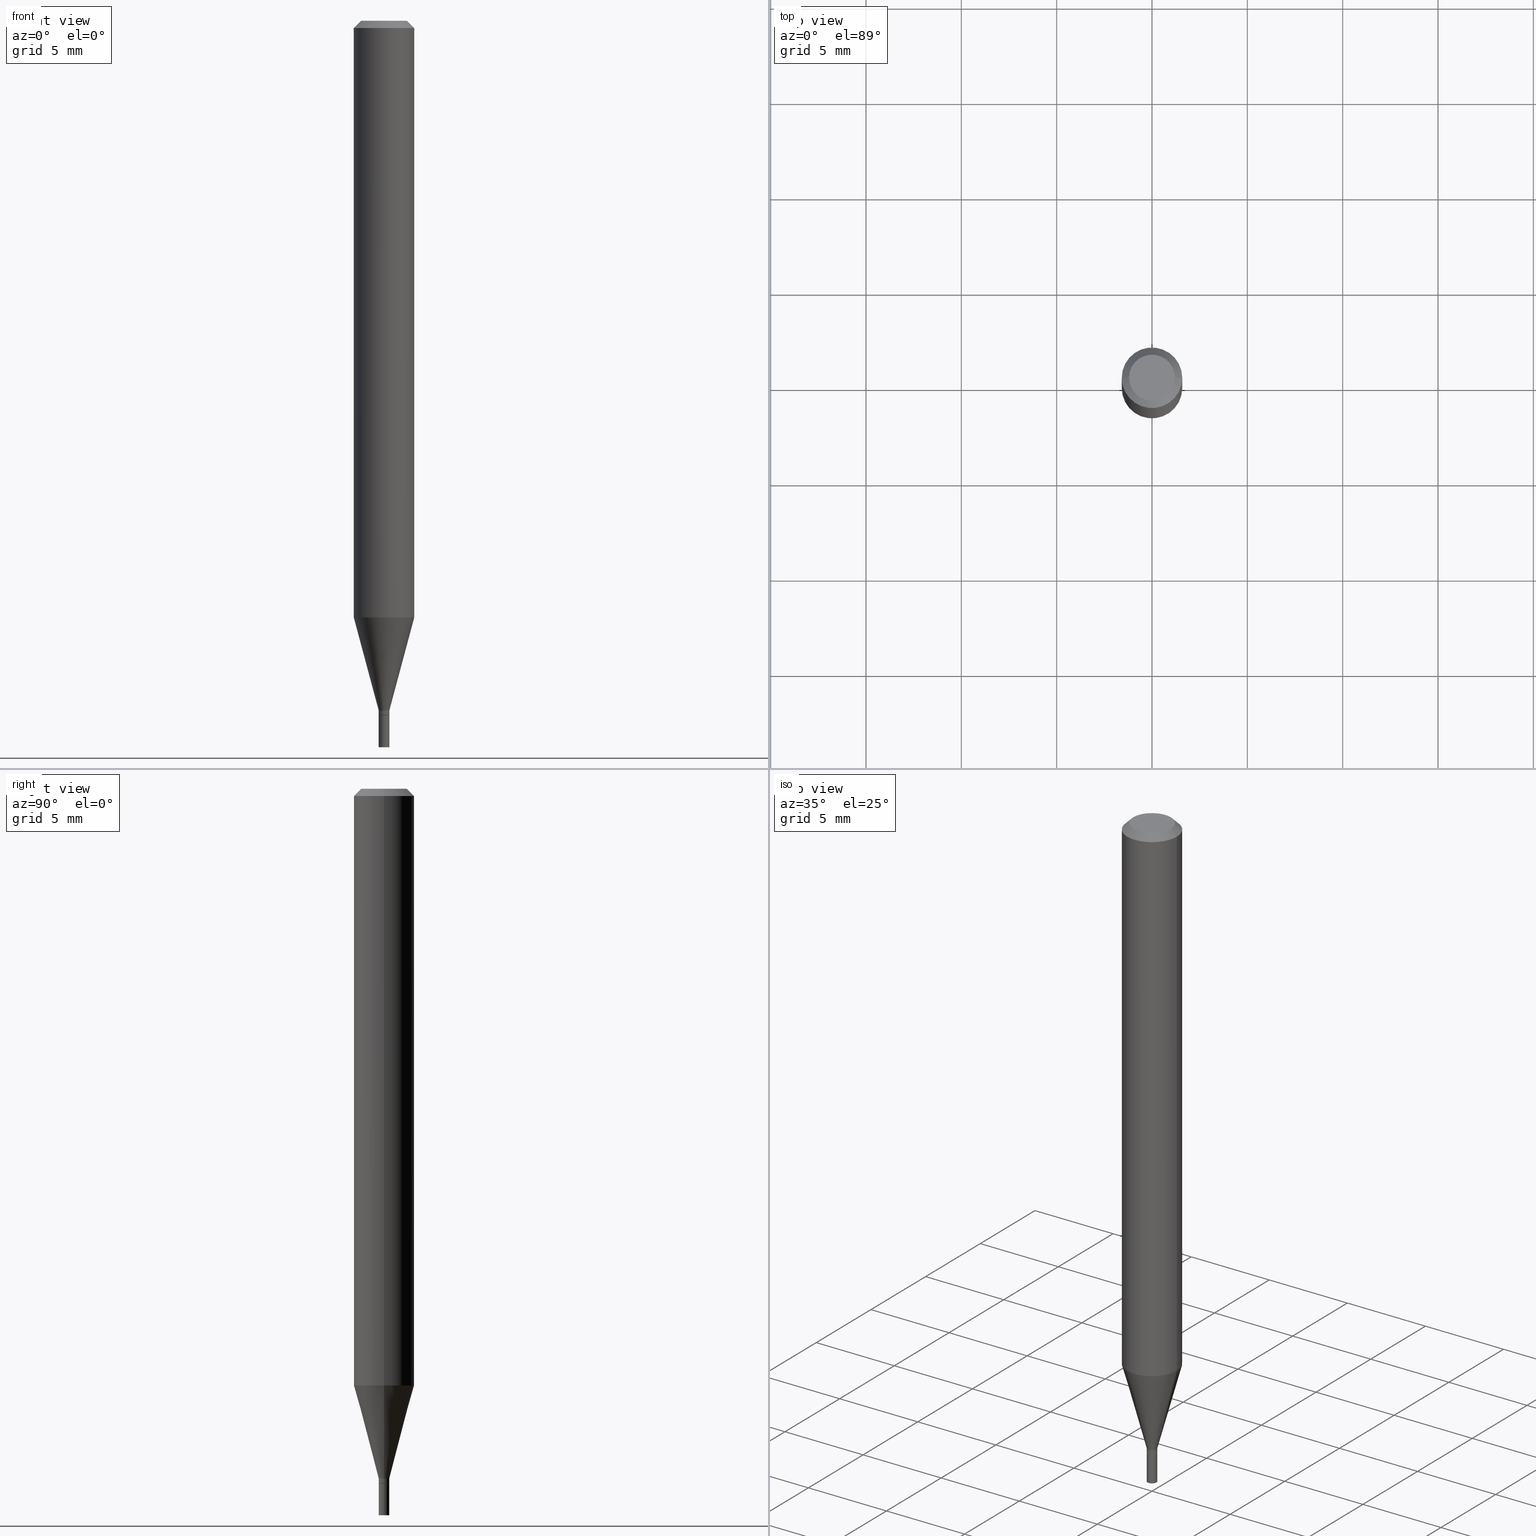
[diagram: canonical four-view strip — front | top / right | iso, engineering-drawing reading convention]
A machine part, canonical four-view strip (front | top / right | iso — engineering-drawing reading convention). The complete STEP part file that produces these views, byte-faithful:
ISO-10303-21;
HEADER;
FILE_DESCRIPTION (( 'STEP AP203' ),
    '1' );
FILE_NAME ('00828.STEP',
    '2024-03-19T22:34:40',
    ( '' ),
    ( '' ),
    'SwSTEP 2.0',
    'SolidWorks 2023',
    '' );
FILE_SCHEMA (( 'CONFIG_CONTROL_DESIGN' ));
ENDSEC;

DATA;
#1 = ORIENTED_EDGE ( 'NONE', *, *, #448, .T. ) ;
#2 = CARTESIAN_POINT ( 'NONE',  ( -0.06250000000000000000, -1.732499180378870171E-15, -0.01499999999999999944 ) ) ;
#3 = FACE_OUTER_BOUND ( 'NONE', #423, .T. ) ;
#4 = CIRCLE ( 'NONE', #22, 0.04749999999999999362 ) ;
#5 = APPLICATION_PROTOCOL_DEFINITION ( 'international standard', 'config_control_design', 1994, #232 ) ;
#6 = FACE_OUTER_BOUND ( 'NONE', #27, .T. ) ;
#7 = CARTESIAN_POINT ( 'NONE',  ( 0.06250000000000000000, -4.811533449433679005E-16, -0.01499999999999999944 ) ) ;
#8 = ORIENTED_EDGE ( 'NONE', *, *, #93, .T. ) ;
#9 = CARTESIAN_POINT ( 'NONE',  ( -0.06250000000000000000, 4.440892098500626162E-16, -3.074334431409316114E-30 ) ) ;
#10 = PERSON_AND_ORGANIZATION_ROLE ( 'creator' ) ;
#11 = VERTEX_POINT ( 'NONE', #172 ) ;
#12 = CIRCLE ( 'NONE', #297, 0.01099999999999999936 ) ;
#13 = SECURITY_CLASSIFICATION ( '', '', #70 ) ;
#14 = EDGE_CURVE ( 'NONE', #372, #64, #58, .T. ) ;
#15 = ORIENTED_EDGE ( 'NONE', *, *, #160, .F. ) ;
#16 = MANIFOLD_SOLID_BREP ( 'Body-Move/Copy2[1]', #316 ) ;
#17 = LINE ( 'NONE', #444, #20 ) ;
#18 = ORIENTED_EDGE ( 'NONE', *, *, #345, .T. ) ;
#19 = ADVANCED_FACE ( 'NONE', ( #115 ), #329, .T. ) ;
#20 = VECTOR ( 'NONE', #238, 39.37007874015748143 ) ;
#21 = DIRECTION ( 'NONE',  ( 1.000000000000000000, -6.982962677686266711E-15, 4.876176775795935793E-29 ) ) ;
#22 = AXIS2_PLACEMENT_3D ( 'NONE', #258, #271, #51 ) ;
#23 = DIRECTION ( 'NONE',  ( 1.000000000000000000, -6.982962677686265922E-15, 4.876176775795935793E-29 ) ) ;
#24 = FACE_OUTER_BOUND ( 'NONE', #171, .T. ) ;
#25 = EDGE_LOOP ( 'NONE', ( #149, #447, #15, #166 ) ) ;
#26 = LINE ( 'NONE', #451, #380 ) ;
#27 = EDGE_LOOP ( 'NONE', ( #142, #86 ) ) ;
#28 = COORDINATED_UNIVERSAL_TIME_OFFSET ( 5, 0, .BEHIND. ) ;
#29 = PLANE ( 'NONE',  #279 ) ;
#30 = CARTESIAN_POINT ( 'NONE',  ( -0.01099999999999999936, 7.815970093361101591E-17, -5.410828599280396199E-31 ) ) ;
#31 = DIRECTION ( 'NONE',  ( 1.000000000000000000, -6.982962677686295898E-15, 0.000000000000000000 ) ) ;
#32 = CONICAL_SURFACE ( 'NONE', #134, 0.01099999999999991956, 0.2617993877991502960 ) ;
#33 = AXIS2_PLACEMENT_3D ( 'NONE', #127, #262, #414 ) ;
#34 = EDGE_CURVE ( 'NONE', #11, #212, #402, .T. ) ;
#35 = CARTESIAN_POINT ( 'NONE',  ( 3.482347580007634944E-29, -4.971869426512640168E-15, -1.424000000000000155 ) ) ;
#36 = CARTESIAN_POINT ( 'NONE',  ( 3.482347580007634944E-29, -4.971869426512640168E-15, -1.424000000000000155 ) ) ;
#37 = DIRECTION ( 'NONE',  ( 0.000000000000000000, 0.000000000000000000, 1.000000000000000000 ) ) ;
#38 = CARTESIAN_POINT ( 'NONE',  ( 0.000000000000000000, 0.000000000000000000, 0.000000000000000000 ) ) ;
#39 = EDGE_CURVE ( 'NONE', #64, #314, #368, .T. ) ;
#40 = VECTOR ( 'NONE', #189, 39.37007874015748143 ) ;
#41 = APPROVAL_PERSON_ORGANIZATION ( #176, #56, #446 ) ;
#42 = CARTESIAN_POINT ( 'NONE',  ( 3.506802268069485929E-29, -5.006784239901070239E-15, -1.434000000000000163 ) ) ;
#43 = EDGE_CURVE ( 'NONE', #11, #314, #254, .T. ) ;
#44 = VERTEX_POINT ( 'NONE', #287 ) ;
#45 = CYLINDRICAL_SURFACE ( 'NONE', #81, 0.01099999999999999936 ) ;
#46 = CIRCLE ( 'NONE', #178, 0.01049999999999999892 ) ;
#47 = LINE ( 'NONE', #197, #340 ) ;
#48 = AXIS2_PLACEMENT_3D ( 'NONE', #227, #181, #346 ) ;
#49 = ORIENTED_EDGE ( 'NONE', *, *, #424, .F. ) ;
#50 = DIRECTION ( 'NONE',  ( 1.000000000000000000, -6.982962677686287221E-15, 0.000000000000000000 ) ) ;
#51 = DIRECTION ( 'NONE',  ( 1.000000000000000000, -6.982962677686267499E-15, 4.852736867747366768E-29 ) ) ;
#52 = PERSON_AND_ORGANIZATION ( #223, #298 ) ;
#53 = VERTEX_POINT ( 'NONE', #432 ) ;
#54 = CARTESIAN_POINT ( 'NONE',  ( 3.506802268069485929E-29, -5.006784239901070239E-15, -1.434000000000000163 ) ) ;
#55 = ORIENTED_EDGE ( 'NONE', *, *, #211, .F. ) ;
#56 = APPROVAL ( #247, 'UNSPECIFIED' ) ;
#57 = PERSON_AND_ORGANIZATION_ROLE ( 'creator' ) ;
#58 = CIRCLE ( 'NONE', #347, 0.01099999999999992130 ) ;
#59 = VERTEX_POINT ( 'NONE', #114 ) ;
#60 = AXIS2_PLACEMENT_3D ( 'NONE', #167, #103, #245 ) ;
#61 = APPROVAL_DATE_TIME ( #353, #333 ) ;
#62 = CARTESIAN_POINT ( 'NONE',  ( -0.06250000000000000000, 3.840629472727444916E-16, -0.01499999999999999944 ) ) ;
#63 = ORIENTED_EDGE ( 'NONE', *, *, #160, .T. ) ;
#64 = VERTEX_POINT ( 'NONE', #364 ) ;
#65 = EDGE_LOOP ( 'NONE', ( #454, #457, #179, #83 ) ) ;
#66 = EDGE_CURVE ( 'NONE', #202, #183, #308, .T. ) ;
#67 = CARTESIAN_POINT ( 'NONE',  ( 0.000000000000000000, 0.000000000000000000, 0.000000000000000000 ) ) ;
#68 = ORIENTED_EDGE ( 'NONE', *, *, #367, .F. ) ;
#69 = PERSON_AND_ORGANIZATION ( #223, #298 ) ;
#70 = SECURITY_CLASSIFICATION_LEVEL ( 'unclassified' ) ;
#71 = VERTEX_POINT ( 'NONE', #303 ) ;
#72 = DIRECTION ( 'NONE',  ( -1.000000000000000000, 6.982962677686265922E-15, -4.876176775795935793E-29 ) ) ;
#73 = DIRECTION ( 'NONE',  ( -2.445468806185136597E-29, 3.491481338843145583E-15, 1.000000000000000000 ) ) ;
#74 = APPLICATION_CONTEXT ( 'configuration controlled 3d designs of mechanical parts and assemblies' ) ;
#75 = ADVANCED_FACE ( 'NONE', ( #3 ), #32, .T. ) ;
#76 = EDGE_LOOP ( 'NONE', ( #55, #209, #8, #132 ) ) ;
#77 = FACE_OUTER_BOUND ( 'NONE', #204, .T. ) ;
#78 = CARTESIAN_POINT ( 'NONE',  ( -0.01099999999999991956, -4.893709725579029078E-15, -1.424000000000000155 ) ) ;
#79 = EDGE_LOOP ( 'NONE', ( #177, #443, #322, #243 ) ) ;
#80 = CARTESIAN_POINT ( 'NONE',  ( 0.01099999999999992130, -7.681258945454838802E-17, 5.363794453375491117E-31 ) ) ;
#81 = AXIS2_PLACEMENT_3D ( 'NONE', #38, #334, #164 ) ;
#82 = DIRECTION ( 'NONE',  ( -2.445468806185136597E-29, 3.491481338843145583E-15, 1.000000000000000000 ) ) ;
#83 = ORIENTED_EDGE ( 'NONE', *, *, #440, .F. ) ;
#84 = EDGE_CURVE ( 'NONE', #413, #384, #335, .T. ) ;
#85 = FACE_OUTER_BOUND ( 'NONE', #76, .T. ) ;
#86 = ORIENTED_EDGE ( 'NONE', *, *, #66, .T. ) ;
#87 = MANIFOLD_SOLID_BREP ( 'Body-Move/Copy2[2]', #459 ) ;
#88 = AXIS2_PLACEMENT_3D ( 'NONE', #36, #435, #31 ) ;
#89 = CIRCLE ( 'NONE', #60, 0.06250000000000000000 ) ;
#90 = PERSON_AND_ORGANIZATION ( #223, #298 ) ;
#91 = VERTEX_POINT ( 'NONE', #466 ) ;
#92 = CARTESIAN_POINT ( 'NONE',  ( -0.01099999999999992130, -4.926878798298038435E-15, -1.433500000000000218 ) ) ;
#93 = EDGE_CURVE ( 'NONE', #91, #183, #47, .T. ) ;
#94 = FACE_OUTER_BOUND ( 'NONE', #221, .T. ) ;
#95 = CARTESIAN_POINT ( 'NONE',  ( 0.000000000000000000, 0.000000000000000000, 0.000000000000000000 ) ) ;
#96 = CALENDAR_DATE ( 2024, 19, 3 ) ;
#97 = CARTESIAN_POINT ( 'NONE',  ( 3.668203209277704895E-29, -5.237222008264718177E-15, -1.500000000000000222 ) ) ;
#98 = ORIENTED_EDGE ( 'NONE', *, *, #131, .F. ) ;
#99 = PERSON_AND_ORGANIZATION ( #223, #298 ) ;
#100 = DIRECTION ( 'NONE',  ( 1.000000000000000000, -6.982962677686266711E-15, 4.876176775795935793E-29 ) ) ;
#101 = DIRECTION ( 'NONE',  ( 1.000000000000000000, -6.982962677686295110E-15, 0.000000000000000000 ) ) ;
#102 = CC_DESIGN_PERSON_AND_ORGANIZATION_ASSIGNMENT ( #90, #57, ( #436 ) ) ;
#103 = DIRECTION ( 'NONE',  ( -2.445468806185136597E-29, 3.491481338843145583E-15, 1.000000000000000000 ) ) ;
#104 = EDGE_LOOP ( 'NONE', ( #350, #248, #170, #147 ) ) ;
#105 = DIRECTION ( 'NONE',  ( -2.445468806185136597E-29, 3.491481338843145583E-15, 1.000000000000000000 ) ) ;
#106 = ORIENTED_EDGE ( 'NONE', *, *, #34, .F. ) ;
#107 = DIRECTION ( 'NONE',  ( 2.438088387897960049E-29, -3.491481338843145188E-15, -1.000000000000000000 ) ) ;
#108 = ORIENTED_EDGE ( 'NONE', *, *, #184, .T. ) ;
#109 = DIRECTION ( 'NONE',  ( 1.000000000000000000, -6.982962677686287221E-15, 0.000000000000000000 ) ) ;
#110 = AXIS2_PLACEMENT_3D ( 'NONE', #42, #119, #50 ) ;
#111 = CC_DESIGN_APPROVAL ( #56, ( #251 ) ) ;
#112 = PLANE ( 'NONE',  #220 ) ;
#113 = EDGE_CURVE ( 'NONE', #53, #91, #152, .T. ) ;
#114 = CARTESIAN_POINT ( 'NONE',  ( 0.04749999999999999362, -4.035134999187566790E-16, 6.443424916547846258E-16 ) ) ;
#115 = FACE_OUTER_BOUND ( 'NONE', #65, .T. ) ;
#116 = ADVANCED_FACE ( 'NONE', ( #429 ), #383, .T. ) ;
#117 = AXIS2_PLACEMENT_3D ( 'NONE', #456, #145, #269 ) ;
#118 = CARTESIAN_POINT ( 'NONE',  ( 3.668203209277705088E-31, -5.237222008264718399E-17, -0.01499999999999999944 ) ) ;
#119 = DIRECTION ( 'NONE',  ( -2.445468806185136597E-29, 3.491481338843145583E-15, 1.000000000000000000 ) ) ;
#120 = DIRECTION ( 'NONE',  ( 2.445468806185136597E-29, -3.491481338843145583E-15, -1.000000000000000000 ) ) ;
#121 = AXIS2_PLACEMENT_3D ( 'NONE', #257, #407, #374 ) ;
#122 = VECTOR ( 'NONE', #406, 39.37007874015748143 ) ;
#123 = ORIENTED_EDGE ( 'NONE', *, *, #354, .T. ) ;
#124 = DIRECTION ( 'NONE',  ( -2.445468806185136597E-29, 3.491481338843145583E-15, 1.000000000000000000 ) ) ;
#125 = CARTESIAN_POINT ( 'NONE',  ( 3.482347580007634944E-29, -4.971869426512640168E-15, -1.424000000000000155 ) ) ;
#126 = EDGE_CURVE ( 'NONE', #384, #413, #46, .T. ) ;
#127 = CARTESIAN_POINT ( 'NONE',  ( 7.681258945458397305E-17, 0.01099999999999499121, -1.434000000000000163 ) ) ;
#128 = ORIENTED_EDGE ( 'NONE', *, *, #14, .T. ) ;
#129 = CARTESIAN_POINT ( 'NONE',  ( 0.06250000000000000000, -4.364351673553916694E-16, 3.047610484872459871E-30 ) ) ;
#130 = COORDINATED_UNIVERSAL_TIME_OFFSET ( 5, 0, .BEHIND. ) ;
#131 = EDGE_CURVE ( 'NONE', #314, #44, #17, .T. ) ;
#132 = ORIENTED_EDGE ( 'NONE', *, *, #66, .F. ) ;
#133 = DIRECTION ( 'NONE',  ( 0.7071067811865323627, -7.319954787623203981E-15, -0.7071067811865626718 ) ) ;
#134 = AXIS2_PLACEMENT_3D ( 'NONE', #379, #338, #265 ) ;
#135 = APPROVAL_ROLE ( '' ) ;
#136 = DIRECTION ( 'NONE',  ( 1.000000000000000000, -6.982962677686266711E-15, 4.876176775795935793E-29 ) ) ;
#137 = ORIENTED_EDGE ( 'NONE', *, *, #113, .F. ) ;
#138 = DATE_AND_TIME ( #382, #417 ) ;
#139 = CYLINDRICAL_SURFACE ( 'NONE', #416, 0.01099999999999992130 ) ;
#140 = DIRECTION ( 'NONE',  ( -2.445468806185136597E-29, 3.491481338843145583E-15, 1.000000000000000000 ) ) ;
#141 = LINE ( 'NONE', #280, #291 ) ;
#142 = ORIENTED_EDGE ( 'NONE', *, *, #156, .T. ) ;
#143 = LOCAL_TIME ( 18, 34, 40.00000000000000000, #28 ) ;
#144 = PERSON_AND_ORGANIZATION_ROLE ( 'design_owner' ) ;
#145 = DIRECTION ( 'NONE',  ( 2.445468806185136597E-29, -3.491481338843145583E-15, -1.000000000000000000 ) ) ;
#146 = DIRECTION ( 'NONE',  ( 1.000000000000000000, -6.982962677686295110E-15, 0.000000000000000000 ) ) ;
#147 = ORIENTED_EDGE ( 'NONE', *, *, #14, .F. ) ;
#148 = CARTESIAN_POINT ( 'NONE',  ( 3.506802268069485929E-29, -5.006784239901070239E-15, -1.434000000000000163 ) ) ;
#149 = ORIENTED_EDGE ( 'NONE', *, *, #169, .T. ) ;
#150 = DIRECTION ( 'NONE',  ( -2.445468806185136597E-29, 3.491481338843145583E-15, 1.000000000000000000 ) ) ;
#151 = APPROVAL ( #215, 'UNSPECIFIED' ) ;
#152 = CIRCLE ( 'NONE', #389, 0.01099999999999999936 ) ;
#153 = CIRCLE ( 'NONE', #205, 0.06250000000000000000 ) ;
#154 = AXIS2_PLACEMENT_3D ( 'NONE', #403, #461, #290 ) ;
#155 = LOCAL_TIME ( 18, 34, 40.00000000000000000, #199 ) ;
#156 = EDGE_CURVE ( 'NONE', #183, #202, #12, .T. ) ;
#157 = CARTESIAN_POINT ( 'NONE',  ( 0.000000000000000000, 0.000000000000000000, 0.000000000000000000 ) ) ;
#158 = CIRCLE ( 'NONE', #219, 0.06250000000000000000 ) ;
#159 = ADVANCED_FACE ( 'NONE', ( #453 ), #139, .T. ) ;
#160 = EDGE_CURVE ( 'NONE', #272, #285, #158, .T. ) ;
#161 = DIRECTION ( 'NONE',  ( -2.445468806185136877E-29, 3.491481338843145188E-15, 1.000000000000000000 ) ) ;
#162 = AXIS2_PLACEMENT_3D ( 'NONE', #397, #82, #21 ) ;
#163 = ORIENTED_EDGE ( 'NONE', *, *, #156, .F. ) ;
#164 = DIRECTION ( 'NONE',  ( 1.000000000000000000, -6.982962677686265922E-15, 4.876176775795936353E-29 ) ) ;
#165 = EDGE_CURVE ( 'NONE', #372, #11, #141, .T. ) ;
#166 = ORIENTED_EDGE ( 'NONE', *, *, #328, .F. ) ;
#167 = CARTESIAN_POINT ( 'NONE',  ( 3.012326967607737433E-29, -4.300804560375218494E-15, -1.231799383410203452 ) ) ;
#168 = PERSON_AND_ORGANIZATION_ROLE ( 'design_supplier' ) ;
#169 = EDGE_CURVE ( 'NONE', #44, #212, #89, .T. ) ;
#170 = ORIENTED_EDGE ( 'NONE', *, *, #440, .T. ) ;
#171 = EDGE_LOOP ( 'NONE', ( #201, #264 ) ) ;
#172 = CARTESIAN_POINT ( 'NONE',  ( -0.01099999999999991956, -4.375212538052092478E-15, -1.424000000000000155 ) ) ;
#173 = EDGE_CURVE ( 'NONE', #64, #372, #390, .T. ) ;
#174 = DIRECTION ( 'NONE',  ( -2.445468806185136597E-29, 3.491481338843145583E-15, 1.000000000000000000 ) ) ;
#175 = CARTESIAN_POINT ( 'NONE',  ( 3.012326967607737433E-29, -4.300804560375218494E-15, -1.231799383410203452 ) ) ;
#176 = PERSON_AND_ORGANIZATION ( #223, #298 ) ;
#177 = ORIENTED_EDGE ( 'NONE', *, *, #173, .T. ) ;
#178 = AXIS2_PLACEMENT_3D ( 'NONE', #54, #274, #355 ) ;
#179 = ORIENTED_EDGE ( 'NONE', *, *, #173, .F. ) ;
#180 = AXIS2_PLACEMENT_3D ( 'NONE', #118, #120, #404 ) ;
#181 = DIRECTION ( 'NONE',  ( -2.445468806185136597E-29, 3.491481338843145583E-15, 1.000000000000000000 ) ) ;
#182 = PLANE ( 'NONE',  #445 ) ;
#183 = VERTEX_POINT ( 'NONE', #185 ) ;
#184 = EDGE_CURVE ( 'NONE', #314, #11, #187, .T. ) ;
#185 = CARTESIAN_POINT ( 'NONE',  ( 0.01099999999999999936, -5.083596829355619552E-15, -1.434000000000000163 ) ) ;
#186 = FACE_OUTER_BOUND ( 'NONE', #306, .T. ) ;
#187 = CIRCLE ( 'NONE', #398, 0.01099999999999991956 ) ;
#188 = PRODUCT_RELATED_PRODUCT_CATEGORY ( 'detail', '', ( #288 ) ) ;
#189 = DIRECTION ( 'NONE',  ( -2.445468806185136877E-29, 3.491481338843145188E-15, 1.000000000000000000 ) ) ;
#190 =( CONVERSION_BASED_UNIT ( 'INCH', #460 ) LENGTH_UNIT ( ) NAMED_UNIT ( #222 ) );
#191 = UNCERTAINTY_MEASURE_WITH_UNIT (LENGTH_MEASURE( 1.000000000000000082E-05 ), #190, 'distance_accuracy_value', 'NONE');
#192 = CIRCLE ( 'NONE', #301, 0.01099999999999999936 ) ;
#193 = ORIENTED_EDGE ( 'NONE', *, *, #211, .T. ) ;
#194 = AXIS2_PLACEMENT_3D ( 'NONE', #95, #318, #136 ) ;
#195 = APPROVAL_PERSON_ORGANIZATION ( #69, #151, #252 ) ;
#196 = ADVANCED_FACE ( 'NONE', ( #186 ), #400, .T. ) ;
#197 = CARTESIAN_POINT ( 'NONE',  ( 0.01099999999999999936, -7.681258945454891804E-17, 5.363794453375529652E-31 ) ) ;
#198 = LINE ( 'NONE', #129, #408 ) ;
#199 = COORDINATED_UNIVERSAL_TIME_OFFSET ( 5, 0, .BEHIND. ) ;
#200 = EDGE_LOOP ( 'NONE', ( #49, #267, #63, #421 ) ) ;
#201 = ORIENTED_EDGE ( 'NONE', *, *, #126, .F. ) ;
#202 = VERTEX_POINT ( 'NONE', #296 ) ;
#203 = DIRECTION ( 'NONE',  ( -2.445468806185136597E-29, 3.491481338843145583E-15, 1.000000000000000000 ) ) ;
#204 = EDGE_LOOP ( 'NONE', ( #319, #123, #430, #420 ) ) ;
#205 = AXIS2_PLACEMENT_3D ( 'NONE', #175, #124, #235 ) ;
#206 = DIRECTION ( 'NONE',  ( -2.445468806185136597E-29, 3.491481338843145583E-15, 1.000000000000000000 ) ) ;
#207 = DIRECTION ( 'NONE',  ( 1.000000000000000000, -6.982962677686245411E-15, 0.000000000000000000 ) ) ;
#208 = CC_DESIGN_SECURITY_CLASSIFICATION ( #13, ( #251 ) ) ;
#209 = ORIENTED_EDGE ( 'NONE', *, *, #113, .T. ) ;
#210 = PERSON_AND_ORGANIZATION ( #223, #298 ) ;
#211 = EDGE_CURVE ( 'NONE', #53, #202, #225, .T. ) ;
#212 = VERTEX_POINT ( 'NONE', #359 ) ;
#213 = APPLICATION_PROTOCOL_DEFINITION ( 'international standard', 'config_control_design', 1994, #74 ) ;
#214 = DIRECTION ( 'NONE',  ( -2.445468806185136877E-29, 3.491481338843145188E-15, 1.000000000000000000 ) ) ;
#215 = APPROVAL_STATUS ( 'not_yet_approved' ) ;
#216 = PERSON_AND_ORGANIZATION_ROLE ( 'classification_officer' ) ;
#217 = DIRECTION ( 'NONE',  ( -2.445468806185136877E-29, 3.491481338843145188E-15, 1.000000000000000000 ) ) ;
#218 = CARTESIAN_POINT ( 'NONE',  ( 3.668203209277705088E-31, -5.237222008264718399E-17, -0.01499999999999999944 ) ) ;
#219 = AXIS2_PLACEMENT_3D ( 'NONE', #218, #174, #313 ) ;
#220 = AXIS2_PLACEMENT_3D ( 'NONE', #410, #337, #464 ) ;
#221 = EDGE_LOOP ( 'NONE', ( #108, #419, #281, #98 ) ) ;
#222 = DIMENSIONAL_EXPONENTS ( 1.000000000000000000, 0.000000000000000000, 0.000000000000000000, 0.000000000000000000, 0.000000000000000000, 0.000000000000000000, 0.000000000000000000 ) ;
#223 = PERSON ( 'UNSPECIFIED', 'UNSPECIFIED', 'UNSPECIFIED', ('UNSPECIFIED'), ('UNSPECIFIED'), ('UNSPECIFIED') ) ;
#224 = LINE ( 'NONE', #9, #336 ) ;
#225 = LINE ( 'NONE', #30, #441 ) ;
#226 = CC_DESIGN_PERSON_AND_ORGANIZATION_ASSIGNMENT ( #263, #144, ( #288 ) ) ;
#227 = CARTESIAN_POINT ( 'NONE',  ( 0.000000000000000000, 0.000000000000000000, 0.000000000000000000 ) ) ;
#228 = DATE_AND_TIME ( #396, #143 ) ;
#229 = CARTESIAN_POINT ( 'NONE',  ( 3.668203209277705088E-31, -5.237222008264718399E-17, -0.01499999999999999944 ) ) ;
#230 = ADVANCED_FACE ( 'NONE', ( #24 ), #182, .F. ) ;
#231 = DIRECTION ( 'NONE',  ( -2.445468806185136877E-29, 3.491481338843145188E-15, 1.000000000000000000 ) ) ;
#232 = APPLICATION_CONTEXT ( 'configuration controlled 3d designs of mechanical parts and assemblies' ) ;
#233 = ORIENTED_EDGE ( 'NONE', *, *, #165, .F. ) ;
#234 = ORIENTED_EDGE ( 'NONE', *, *, #131, .T. ) ;
#235 = DIRECTION ( 'NONE',  ( 1.000000000000000000, -6.982962677686262766E-15, 0.000000000000000000 ) ) ;
#236 = CALENDAR_DATE ( 2024, 19, 3 ) ;
#237 = LINE ( 'NONE', #62, #427 ) ;
#238 = DIRECTION ( 'NONE',  ( 0.2588190451025216832, 1.565188264969619798E-15, 0.9659258262890679791 ) ) ;
#239 = ADVANCED_FACE ( 'NONE', ( #321 ), #349, .T. ) ;
#240 = COORDINATED_UNIVERSAL_TIME_OFFSET ( 5, 0, .BEHIND. ) ;
#241 = DIRECTION ( 'NONE',  ( -0.7071067811865323627, 2.468850131082098105E-15, -0.7071067811865626718 ) ) ;
#242 = AXIS2_PLACEMENT_3D ( 'NONE', #286, #73, #458 ) ;
#243 = ORIENTED_EDGE ( 'NONE', *, *, #39, .F. ) ;
#244 = SHAPE_DEFINITION_REPRESENTATION ( #283, #433 ) ;
#245 = DIRECTION ( 'NONE',  ( 1.000000000000000000, -6.982962677686262766E-15, 0.000000000000000000 ) ) ;
#246 = ORIENTED_EDGE ( 'NONE', *, *, #354, .F. ) ;
#247 = APPROVAL_STATUS ( 'not_yet_approved' ) ;
#248 = ORIENTED_EDGE ( 'NONE', *, *, #84, .T. ) ;
#249 = DIRECTION ( 'NONE',  ( 1.000000000000000000, -6.982962677686245411E-15, 0.000000000000000000 ) ) ;
#250 = EDGE_LOOP ( 'NONE', ( #275, #137 ) ) ;
#251 = PRODUCT_DEFINITION_FORMATION_WITH_SPECIFIED_SOURCE ( 'ANY', '', #288, .NOT_KNOWN. ) ;
#252 = APPROVAL_ROLE ( '' ) ;
#253 = ADVANCED_FACE ( 'NONE', ( #289 ), #112, .F. ) ;
#254 = CIRCLE ( 'NONE', #88, 0.01099999999999991956 ) ;
#255 = CIRCLE ( 'NONE', #437, 0.06250000000000000000 ) ;
#256 = CARTESIAN_POINT ( 'NONE',  ( 3.506802268069485929E-29, -5.006784239901070239E-15, -1.434000000000000163 ) ) ;
#257 = CARTESIAN_POINT ( 'NONE',  ( 3.506802268069485929E-29, -5.006784239901070239E-15, -1.434000000000000163 ) ) ;
#258 = CARTESIAN_POINT ( 'NONE',  ( -1.575719463841376315E-44, 2.249709785436367094E-30, 6.443424916547820620E-16 ) ) ;
#259 = AXIS2_PLACEMENT_3D ( 'NONE', #324, #150, #399 ) ;
#260 = CARTESIAN_POINT ( 'NONE',  ( 0.06250000000000000000, -4.888073874380388472E-16, -0.01499999999999999944 ) ) ;
#261 = CC_DESIGN_DATE_AND_TIME_ASSIGNMENT ( #138, #425, ( #436 ) ) ;
#262 = DIRECTION ( 'NONE',  ( 2.438088387897960049E-29, -3.491481338843145188E-15, -1.000000000000000000 ) ) ;
#263 = PERSON_AND_ORGANIZATION ( #223, #298 ) ;
#264 = ORIENTED_EDGE ( 'NONE', *, *, #84, .F. ) ;
#265 = DIRECTION ( 'NONE',  ( 1.000000000000000000, -6.982962677686295898E-15, 0.000000000000000000 ) ) ;
#266 = VECTOR ( 'NONE', #133, 39.37007874015748143 ) ;
#267 = ORIENTED_EDGE ( 'NONE', *, *, #367, .T. ) ;
#268 = APPROVAL_STATUS ( 'not_yet_approved' ) ;
#269 = DIRECTION ( 'NONE',  ( -1.000000000000000000, 6.982962677686266711E-15, 0.000000000000000000 ) ) ;
#270 = CC_DESIGN_DATE_AND_TIME_ASSIGNMENT ( #276, #357, ( #13 ) ) ;
#271 = DIRECTION ( 'NONE',  ( -2.445468806185136597E-29, 3.491481338843145583E-15, 1.000000000000000000 ) ) ;
#272 = VERTEX_POINT ( 'NONE', #260 ) ;
#273 = FACE_OUTER_BOUND ( 'NONE', #79, .T. ) ;
#274 = DIRECTION ( 'NONE',  ( -2.445468806185136597E-29, 3.491481338843145583E-15, 1.000000000000000000 ) ) ;
#275 = ORIENTED_EDGE ( 'NONE', *, *, #381, .F. ) ;
#276 = DATE_AND_TIME ( #307, #155 ) ;
#277 = VECTOR ( 'NONE', #292, 39.37007874015748143 ) ;
#278 = FACE_OUTER_BOUND ( 'NONE', #304, .T. ) ;
#279 = AXIS2_PLACEMENT_3D ( 'NONE', #327, #107, #72 ) ;
#280 = CARTESIAN_POINT ( 'NONE',  ( -0.01099999999999992130, 7.815970093361046124E-17, -5.410828599280358539E-31 ) ) ;
#281 = ORIENTED_EDGE ( 'NONE', *, *, #169, .F. ) ;
#282 = ADVANCED_FACE ( 'NONE', ( #300 ), #348, .T. ) ;
#283 = PRODUCT_DEFINITION_SHAPE ( 'NONE', 'NONE',  #436 ) ;
#284 =( NAMED_UNIT ( * ) SI_UNIT ( $, .STERADIAN. ) SOLID_ANGLE_UNIT ( ) );
#285 = VERTEX_POINT ( 'NONE', #2 ) ;
#286 = CARTESIAN_POINT ( 'NONE',  ( 3.506802268069485929E-29, -5.006784239901070239E-15, -1.434000000000000163 ) ) ;
#287 = CARTESIAN_POINT ( 'NONE',  ( 0.06249999999999997918, -4.737239727730610164E-15, -1.231799383410203452 ) ) ;
#288 = PRODUCT ( '00828', '00828', '', ( #405 ) ) ;
#289 = FACE_OUTER_BOUND ( 'NONE', #250, .T. ) ;
#290 = DIRECTION ( 'NONE',  ( 1.000000000000000000, -6.982962677686265922E-15, 4.876176775795936353E-29 ) ) ;
#291 = VECTOR ( 'NONE', #214, 39.37007874015748143 ) ;
#292 = DIRECTION ( 'NONE',  ( -0.2588190451025216832, 5.211531920934551831E-15, 0.9659258262890679791 ) ) ;
#293 = CC_DESIGN_APPROVAL ( #333, ( #13 ) ) ;
#294 = EDGE_CURVE ( 'NONE', #285, #272, #255, .T. ) ;
#295 = DIRECTION ( 'NONE',  ( 1.000000000000000000, -6.982962677686295898E-15, 0.000000000000000000 ) ) ;
#296 = CARTESIAN_POINT ( 'NONE',  ( -0.01099999999999999936, -5.043843423149283907E-15, -1.434000000000000163 ) ) ;
#297 = AXIS2_PLACEMENT_3D ( 'NONE', #392, #105, #207 ) ;
#298 = ORGANIZATION ( 'UNSPECIFIED', 'UNSPECIFIED', '' ) ;
#299 = ADVANCED_FACE ( 'NONE', ( #6 ), #302, .F. ) ;
#300 = FACE_OUTER_BOUND ( 'NONE', #200, .T. ) ;
#301 = AXIS2_PLACEMENT_3D ( 'NONE', #97, #203, #249 ) ;
#302 = PLANE ( 'NONE',  #33 ) ;
#303 = CARTESIAN_POINT ( 'NONE',  ( -0.04749999999999999362, 3.578768372314221846E-16, 6.443424916547796954E-16 ) ) ;
#304 = EDGE_LOOP ( 'NONE', ( #68, #391, #18, #311 ) ) ;
#305 = ORIENTED_EDGE ( 'NONE', *, *, #381, .T. ) ;
#306 = EDGE_LOOP ( 'NONE', ( #305, #193, #163, #375 ) ) ;
#307 = CALENDAR_DATE ( 2024, 19, 3 ) ;
#308 = CIRCLE ( 'NONE', #121, 0.01099999999999999936 ) ;
#309 = ADVANCED_FACE ( 'NONE', ( #85 ), #45, .T. ) ;
#310 = LOCAL_TIME ( 18, 34, 40.00000000000000000, #240 ) ;
#311 = ORIENTED_EDGE ( 'NONE', *, *, #294, .T. ) ;
#312 = ORIENTED_EDGE ( 'NONE', *, *, #424, .T. ) ;
#313 = DIRECTION ( 'NONE',  ( 1.000000000000000000, -6.982962677686266711E-15, 0.000000000000000000 ) ) ;
#314 = VERTEX_POINT ( 'NONE', #342 ) ;
#315 = DIRECTION ( 'NONE',  ( -0.7071067811865642261, 7.493145998870414114E-15, 0.7071067811865309194 ) ) ;
#316 = CLOSED_SHELL ( 'NONE', ( #196, #253, #309, #299 ) ) ;
#317 = CONICAL_SURFACE ( 'NONE', #117, 0.06250000000000000000, 0.7853981633974268517 ) ;
#318 = DIRECTION ( 'NONE',  ( -2.445468806185136597E-29, 3.491481338843145583E-15, 1.000000000000000000 ) ) ;
#319 = ORIENTED_EDGE ( 'NONE', *, *, #428, .F. ) ;
#320 = CYLINDRICAL_SURFACE ( 'NONE', #162, 0.01099999999999992130 ) ;
#321 = FACE_OUTER_BOUND ( 'NONE', #104, .T. ) ;
#322 = ORIENTED_EDGE ( 'NONE', *, *, #184, .F. ) ;
#323 =( LENGTH_UNIT ( ) NAMED_UNIT ( * ) SI_UNIT ( $, .METRE. ) );
#324 = CARTESIAN_POINT ( 'NONE',  ( -1.575719463841376315E-44, 2.249709785436367094E-30, 6.443424916547820620E-16 ) ) ;
#325 =( NAMED_UNIT ( * ) PLANE_ANGLE_UNIT ( ) SI_UNIT ( $, .RADIAN. ) );
#326 = DIRECTION ( 'NONE',  ( -2.445468806185136597E-29, 3.491481338843145583E-15, 1.000000000000000000 ) ) ;
#327 = CARTESIAN_POINT ( 'NONE',  ( 3.316907271900976096E-16, 0.04749999999999999362, 1.563258822323416346E-16 ) ) ;
#328 = EDGE_CURVE ( 'NONE', #44, #272, #198, .T. ) ;
#329 = CONICAL_SURFACE ( 'NONE', #426, 0.01049999999999999892, 0.7853981633974718157 ) ;
#330 = CIRCLE ( 'NONE', #259, 0.04749999999999999362 ) ;
#331 = DIRECTION ( 'NONE',  ( -2.445468806185136597E-29, 3.491481338843145583E-15, 1.000000000000000000 ) ) ;
#332 = ORIENTED_EDGE ( 'NONE', *, *, #39, .T. ) ;
#333 = APPROVAL ( #268, 'UNSPECIFIED' ) ;
#334 = DIRECTION ( 'NONE',  ( -2.445468806185136597E-29, 3.491481338843145583E-15, 1.000000000000000000 ) ) ;
#335 = CIRCLE ( 'NONE', #110, 0.01049999999999999892 ) ;
#336 = VECTOR ( 'NONE', #344, 39.37007874015748143 ) ;
#337 = DIRECTION ( 'NONE',  ( -2.438088387897960049E-29, 3.491481338843145188E-15, 1.000000000000000000 ) ) ;
#338 = DIRECTION ( 'NONE',  ( -2.445468806185136597E-29, 3.491481338843145583E-15, 1.000000000000000000 ) ) ;
#339 = ADVANCED_FACE ( 'NONE', ( #77 ), #452, .T. ) ;
#340 = VECTOR ( 'NONE', #161, 39.37007874015748143 ) ;
#341 = AXIS2_PLACEMENT_3D ( 'NONE', #393, #356, #146 ) ;
#342 = CARTESIAN_POINT ( 'NONE',  ( 0.01099999999999991956, -5.048682015967188692E-15, -1.424000000000000155 ) ) ;
#343 = CARTESIAN_POINT ( 'NONE',  ( 3.668203209277704895E-29, -5.237222008264718177E-15, -1.500000000000000222 ) ) ;
#344 = DIRECTION ( 'NONE',  ( -2.445468806185136877E-29, 3.491481338843145188E-15, 1.000000000000000000 ) ) ;
#345 = EDGE_CURVE ( 'NONE', #71, #285, #237, .T. ) ;
#346 = DIRECTION ( 'NONE',  ( 1.000000000000000000, -6.982962677686266711E-15, 4.876176775795935793E-29 ) ) ;
#347 = AXIS2_PLACEMENT_3D ( 'NONE', #450, #140, #101 ) ;
#348 = CONICAL_SURFACE ( 'NONE', #180, 0.06250000000000000000, 0.7853981633974268517 ) ;
#349 = CONICAL_SURFACE ( 'NONE', #242, 0.01049999999999999892, 0.7853981633974718157 ) ;
#350 = ORIENTED_EDGE ( 'NONE', *, *, #409, .F. ) ;
#351 = LOCAL_TIME ( 18, 34, 40.00000000000000000, #130 ) ;
#352 = DIRECTION ( 'NONE',  ( 1.000000000000000000, -6.982962677686295898E-15, 0.000000000000000000 ) ) ;
#353 = DATE_AND_TIME ( #96, #351 ) ;
#354 = EDGE_CURVE ( 'NONE', #212, #44, #153, .T. ) ;
#355 = DIRECTION ( 'NONE',  ( 1.000000000000000000, -6.982962677686287221E-15, 0.000000000000000000 ) ) ;
#356 = DIRECTION ( 'NONE',  ( -2.445468806185136597E-29, 3.491481338843145583E-15, 1.000000000000000000 ) ) ;
#357 = DATE_TIME_ROLE ( 'classification_date' ) ;
#358 = CARTESIAN_POINT ( 'NONE',  ( -0.01049999999999999892, -4.929528025472149636E-15, -1.434000000000000163 ) ) ;
#359 = CARTESIAN_POINT ( 'NONE',  ( -0.06249999999999997918, -3.856715350525155878E-15, -1.231799383410203452 ) ) ;
#360 = AXIS2_PLACEMENT_3D ( 'NONE', #125, #206, #352 ) ;
#361 = ORIENTED_EDGE ( 'NONE', *, *, #43, .T. ) ;
#362 = CARTESIAN_POINT ( 'NONE',  ( 0.01049999999999999892, -5.080105348016776545E-15, -1.434000000000000163 ) ) ;
#363 = CC_DESIGN_PERSON_AND_ORGANIZATION_ASSIGNMENT ( #52, #216, ( #13 ) ) ;
#364 = CARTESIAN_POINT ( 'NONE',  ( 0.01099999999999992130, -5.081851088686198048E-15, -1.433500000000000218 ) ) ;
#365 = CONICAL_SURFACE ( 'NONE', #360, 0.01099999999999991956, 0.2617993877991502960 ) ;
#366 = APPROVAL_PERSON_ORGANIZATION ( #418, #333, #135 ) ;
#367 = EDGE_CURVE ( 'NONE', #59, #272, #378, .T. ) ;
#368 = LINE ( 'NONE', #80, #40 ) ;
#369 = APPROVAL_DATE_TIME ( #228, #151 ) ;
#370 = DIRECTION ( 'NONE',  ( -2.445468806185136597E-29, 3.491481338843145583E-15, 1.000000000000000000 ) ) ;
#371 = DESIGN_CONTEXT ( 'detailed design', #74, 'design' ) ;
#372 = VERTEX_POINT ( 'NONE', #92 ) ;
#373 = DIRECTION ( 'NONE',  ( 1.000000000000000000, -6.982962677686266711E-15, 0.000000000000000000 ) ) ;
#374 = DIRECTION ( 'NONE',  ( 1.000000000000000000, -6.982962677686245411E-15, 0.000000000000000000 ) ) ;
#375 = ORIENTED_EDGE ( 'NONE', *, *, #93, .F. ) ;
#376 = ADVANCED_FACE ( 'NONE', ( #278 ), #317, .T. ) ;
#377 = EDGE_LOOP ( 'NONE', ( #233, #128, #332, #394 ) ) ;
#378 = LINE ( 'NONE', #7, #266 ) ;
#379 = CARTESIAN_POINT ( 'NONE',  ( 3.482347580007634944E-29, -4.971869426512640168E-15, -1.424000000000000155 ) ) ;
#380 = VECTOR ( 'NONE', #315, 39.37007874015748143 ) ;
#381 = EDGE_CURVE ( 'NONE', #91, #53, #192, .T. ) ;
#382 = CALENDAR_DATE ( 2024, 19, 3 ) ;
#383 = CYLINDRICAL_SURFACE ( 'NONE', #194, 0.06250000000000000000 ) ;
#384 = VERTEX_POINT ( 'NONE', #362 ) ;
#385 = DATE_AND_TIME ( #236, #310 ) ;
#386 = FACE_OUTER_BOUND ( 'NONE', #387, .T. ) ;
#387 = EDGE_LOOP ( 'NONE', ( #1, #312 ) ) ;
#388 = APPROVAL_DATE_TIME ( #385, #56 ) ;
#389 = AXIS2_PLACEMENT_3D ( 'NONE', #343, #415, #449 ) ;
#390 = CIRCLE ( 'NONE', #341, 0.01099999999999992130 ) ;
#391 = ORIENTED_EDGE ( 'NONE', *, *, #448, .F. ) ;
#392 = CARTESIAN_POINT ( 'NONE',  ( 3.506802268069485929E-29, -5.006784239901070239E-15, -1.434000000000000163 ) ) ;
#393 = CARTESIAN_POINT ( 'NONE',  ( 3.505579533666394249E-29, -5.005038499231650313E-15, -1.433500000000000218 ) ) ;
#394 = ORIENTED_EDGE ( 'NONE', *, *, #43, .F. ) ;
#395 = COORDINATED_UNIVERSAL_TIME_OFFSET ( 5, 0, .BEHIND. ) ;
#396 = CALENDAR_DATE ( 2024, 19, 3 ) ;
#397 = CARTESIAN_POINT ( 'NONE',  ( 0.000000000000000000, 0.000000000000000000, 0.000000000000000000 ) ) ;
#398 = AXIS2_PLACEMENT_3D ( 'NONE', #35, #331, #295 ) ;
#399 = DIRECTION ( 'NONE',  ( 1.000000000000000000, -6.982962677686267499E-15, 4.852736867747366768E-29 ) ) ;
#400 = CYLINDRICAL_SURFACE ( 'NONE', #154, 0.01099999999999999936 ) ;
#401 = AXIS2_PLACEMENT_3D ( 'NONE', #157, #37, #465 ) ;
#402 = LINE ( 'NONE', #78, #277 ) ;
#403 = CARTESIAN_POINT ( 'NONE',  ( 0.000000000000000000, 0.000000000000000000, 0.000000000000000000 ) ) ;
#404 = DIRECTION ( 'NONE',  ( -1.000000000000000000, 6.982962677686266711E-15, 0.000000000000000000 ) ) ;
#405 = MECHANICAL_CONTEXT ( 'NONE', #232, 'mechanical' ) ;
#406 = DIRECTION ( 'NONE',  ( 0.7071067811865642261, -2.468850131082431399E-15, 0.7071067811865309194 ) ) ;
#407 = DIRECTION ( 'NONE',  ( -2.445468806185136597E-29, 3.491481338843145583E-15, 1.000000000000000000 ) ) ;
#408 = VECTOR ( 'NONE', #231, 39.37007874015748143 ) ;
#409 = EDGE_CURVE ( 'NONE', #413, #372, #26, .T. ) ;
#410 = CARTESIAN_POINT ( 'NONE',  ( 3.584916967085606921E-29, -5.356492647442320375E-15, -1.500000000000000222 ) ) ;
#411 = CC_DESIGN_PERSON_AND_ORGANIZATION_ASSIGNMENT ( #210, #10, ( #251 ) ) ;
#412 = DIRECTION ( 'NONE',  ( -2.438088387897960049E-29, 3.491481338843145188E-15, 1.000000000000000000 ) ) ;
#413 = VERTEX_POINT ( 'NONE', #358 ) ;
#414 = DIRECTION ( 'NONE',  ( -1.000000000000000000, 6.982962677686265922E-15, -4.876176775795935793E-29 ) ) ;
#415 = DIRECTION ( 'NONE',  ( -2.445468806185136597E-29, 3.491481338843145583E-15, 1.000000000000000000 ) ) ;
#416 = AXIS2_PLACEMENT_3D ( 'NONE', #67, #422, #100 ) ;
#417 = LOCAL_TIME ( 18, 34, 40.00000000000000000, #395 ) ;
#418 = PERSON_AND_ORGANIZATION ( #223, #298 ) ;
#419 = ORIENTED_EDGE ( 'NONE', *, *, #34, .T. ) ;
#420 = ORIENTED_EDGE ( 'NONE', *, *, #294, .F. ) ;
#421 = ORIENTED_EDGE ( 'NONE', *, *, #345, .F. ) ;
#422 = DIRECTION ( 'NONE',  ( -2.445468806185136597E-29, 3.491481338843145583E-15, 1.000000000000000000 ) ) ;
#423 = EDGE_LOOP ( 'NONE', ( #106, #361, #234, #246 ) ) ;
#424 = EDGE_CURVE ( 'NONE', #59, #71, #330, .T. ) ;
#425 = DATE_TIME_ROLE ( 'creation_date' ) ;
#426 = AXIS2_PLACEMENT_3D ( 'NONE', #256, #326, #109 ) ;
#427 = VECTOR ( 'NONE', #241, 39.37007874015748143 ) ;
#428 = EDGE_CURVE ( 'NONE', #212, #285, #224, .T. ) ;
#429 = FACE_OUTER_BOUND ( 'NONE', #25, .T. ) ;
#430 = ORIENTED_EDGE ( 'NONE', *, *, #328, .T. ) ;
#431 = ADVANCED_FACE ( 'NONE', ( #94 ), #365, .T. ) ;
#432 = CARTESIAN_POINT ( 'NONE',  ( -0.01099999999999999936, -5.043843423149283907E-15, -1.500000000000000222 ) ) ;
#433 = ADVANCED_BREP_SHAPE_REPRESENTATION ( '00828', ( #16, #87, #401 ), #434 ) ;
#434 =( GEOMETRIC_REPRESENTATION_CONTEXT ( 3 ) GLOBAL_UNCERTAINTY_ASSIGNED_CONTEXT ( ( #191 ) ) GLOBAL_UNIT_ASSIGNED_CONTEXT ( ( #190, #325, #284 ) ) REPRESENTATION_CONTEXT ( 'NONE', 'WORKASPACE' ) );
#435 = DIRECTION ( 'NONE',  ( -2.445468806185136597E-29, 3.491481338843145583E-15, 1.000000000000000000 ) ) ;
#436 = PRODUCT_DEFINITION ( 'UNKNOWN', '', #251, #371 ) ;
#437 = AXIS2_PLACEMENT_3D ( 'NONE', #229, #370, #373 ) ;
#438 = CARTESIAN_POINT ( 'NONE',  ( 0.01049999999999999892, -5.080105348016776545E-15, -1.434000000000000163 ) ) ;
#439 = CC_DESIGN_PERSON_AND_ORGANIZATION_ASSIGNMENT ( #99, #168, ( #251 ) ) ;
#440 = EDGE_CURVE ( 'NONE', #384, #64, #463, .T. ) ;
#441 = VECTOR ( 'NONE', #217, 39.37007874015748143 ) ;
#442 = ADVANCED_FACE ( 'NONE', ( #273 ), #320, .T. ) ;
#443 = ORIENTED_EDGE ( 'NONE', *, *, #165, .T. ) ;
#444 = CARTESIAN_POINT ( 'NONE',  ( 0.01099999999999991956, -5.048682015967188692E-15, -1.424000000000000155 ) ) ;
#445 = AXIS2_PLACEMENT_3D ( 'NONE', #148, #412, #23 ) ;
#446 = APPROVAL_ROLE ( '' ) ;
#447 = ORIENTED_EDGE ( 'NONE', *, *, #428, .T. ) ;
#448 = EDGE_CURVE ( 'NONE', #71, #59, #4, .T. ) ;
#449 = DIRECTION ( 'NONE',  ( 1.000000000000000000, -6.982962677686245411E-15, 0.000000000000000000 ) ) ;
#450 = CARTESIAN_POINT ( 'NONE',  ( 3.505579533666394249E-29, -5.005038499231650313E-15, -1.433500000000000218 ) ) ;
#451 = CARTESIAN_POINT ( 'NONE',  ( -0.01049999999999999892, -4.932177252646259259E-15, -1.434000000000000163 ) ) ;
#452 = CYLINDRICAL_SURFACE ( 'NONE', #48, 0.06250000000000000000 ) ;
#453 = FACE_OUTER_BOUND ( 'NONE', #377, .T. ) ;
#454 = ORIENTED_EDGE ( 'NONE', *, *, #126, .T. ) ;
#455 = CC_DESIGN_APPROVAL ( #151, ( #436 ) ) ;
#456 = CARTESIAN_POINT ( 'NONE',  ( 3.668203209277705088E-31, -5.237222008264718399E-17, -0.01499999999999999944 ) ) ;
#457 = ORIENTED_EDGE ( 'NONE', *, *, #409, .T. ) ;
#458 = DIRECTION ( 'NONE',  ( 1.000000000000000000, -6.982962677686287221E-15, 0.000000000000000000 ) ) ;
#459 = CLOSED_SHELL ( 'NONE', ( #442, #19, #282, #116, #431, #75, #339, #376, #462, #230, #239, #159 ) ) ;
#460 = LENGTH_MEASURE_WITH_UNIT ( LENGTH_MEASURE( 0.02539999999999999897 ), #323 );
#461 = DIRECTION ( 'NONE',  ( -2.445468806185136597E-29, 3.491481338843145583E-15, 1.000000000000000000 ) ) ;
#462 = ADVANCED_FACE ( 'NONE', ( #386 ), #29, .F. ) ;
#463 = LINE ( 'NONE', #438, #122 ) ;
#464 = DIRECTION ( 'NONE',  ( 1.000000000000000000, -6.982962677686265922E-15, 4.876176775795935793E-29 ) ) ;
#465 = DIRECTION ( 'NONE',  ( 1.000000000000000000, 0.000000000000000000, 0.000000000000000000 ) ) ;
#466 = CARTESIAN_POINT ( 'NONE',  ( 0.01099999999999999936, -5.314034597719267489E-15, -1.500000000000000222 ) ) ;
ENDSEC;
END-ISO-10303-21;
